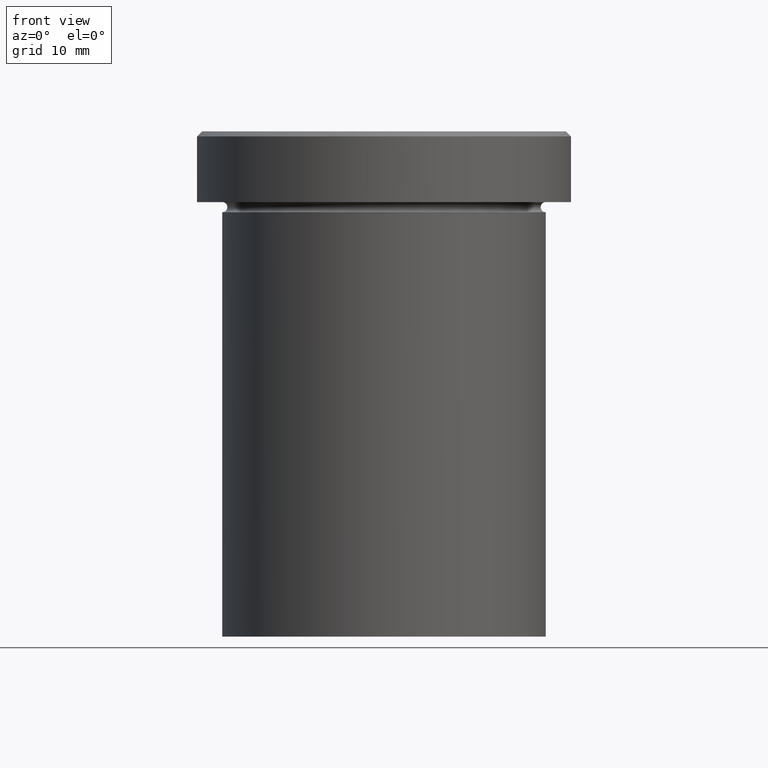
[diagram: clean part render]
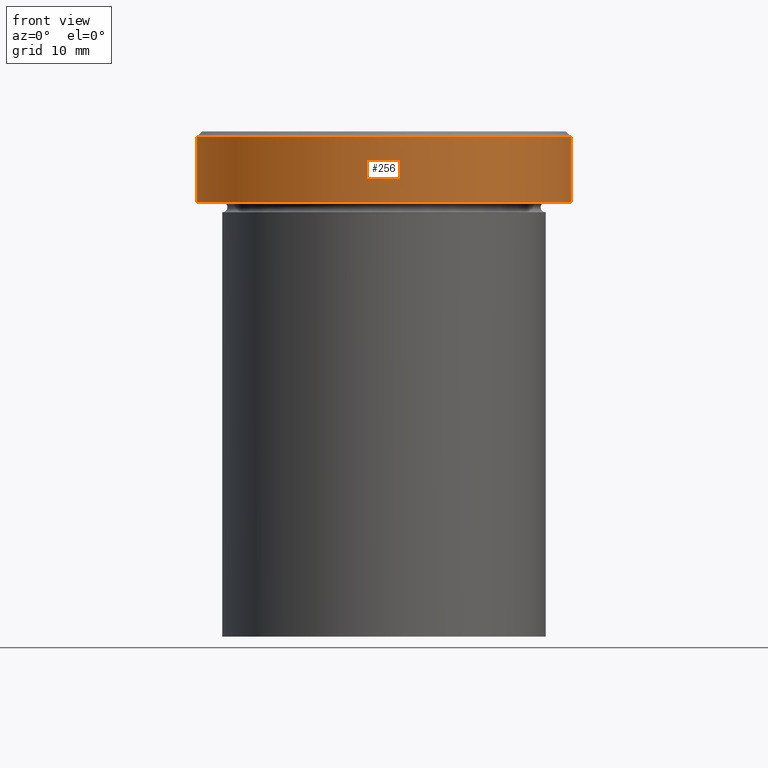
[diagram: same view with one face highlighted and labeled with its STEP entity id]
A machine part, front view. The second image highlights one B-rep face of the part: STEP entity #256.
In plain terms, the highlighted cylindrical surface (partial cylindrical patch) has radius 18.5 mm, axis along (-0, -0, 1).
Its self-contained STEP definition (entity closure, byte-faithful):
#1 = DIRECTION ( 'NONE',  ( -0.000000000000000000, -0.000000000000000000, 1.000000000000000000 ) ) ;
#5 = ORIENTED_EDGE ( 'NONE', *, *, #288, .T. ) ;
#10 = VERTEX_POINT ( 'NONE', #147 ) ;
#20 = DIRECTION ( 'NONE',  ( -0.000000000000000000, -0.000000000000000000, 1.000000000000000000 ) ) ;
#36 = EDGE_CURVE ( 'NONE', #143, #10, #93, .T. ) ;
#48 = ORIENTED_EDGE ( 'NONE', *, *, #110, .T. ) ;
#60 = VERTEX_POINT ( 'NONE', #181 ) ;
#68 = AXIS2_PLACEMENT_3D ( 'NONE', #139, #1, #294 ) ;
#72 = VECTOR ( 'NONE', #247, 1000.000000000000000 ) ;
#81 = EDGE_CURVE ( 'NONE', #356, #60, #179, .T. ) ;
#89 = ORIENTED_EDGE ( 'NONE', *, *, #36, .T. ) ;
#93 = LINE ( 'NONE', #242, #346 ) ;
#110 = EDGE_CURVE ( 'NONE', #10, #60, #334, .T. ) ;
#115 = CARTESIAN_POINT ( 'NONE',  ( 0.000000000000000000, 0.000000000000000000, -0.5000000000000004441 ) ) ;
#121 = CARTESIAN_POINT ( 'NONE',  ( 0.000000000000000000, 0.000000000000000000, -6.999999999999999112 ) ) ;
#139 = CARTESIAN_POINT ( 'NONE',  ( 0.000000000000000000, 0.000000000000000000, 0.000000000000000000 ) ) ;
#143 = VERTEX_POINT ( 'NONE', #271 ) ;
#146 = CARTESIAN_POINT ( 'NONE',  ( -18.50000000000000000, 2.265596578422603396E-15, -6.999999999999999112 ) ) ;
#147 = CARTESIAN_POINT ( 'NONE',  ( 18.50000000000000000, 0.000000000000000000, -0.5000000000000004441 ) ) ;
#167 = CYLINDRICAL_SURFACE ( 'NONE', #68, 18.50000000000000000 ) ;
#174 = DIRECTION ( 'NONE',  ( -0.000000000000000000, -0.000000000000000000, 1.000000000000000000 ) ) ;
#179 = LINE ( 'NONE', #310, #72 ) ;
#181 = CARTESIAN_POINT ( 'NONE',  ( -18.50000000000000000, 2.265596578422603396E-15, -0.5000000000000004441 ) ) ;
#204 = ORIENTED_EDGE ( 'NONE', *, *, #81, .F. ) ;
#237 = AXIS2_PLACEMENT_3D ( 'NONE', #121, #174, #269 ) ;
#242 = CARTESIAN_POINT ( 'NONE',  ( 18.50000000000000000, 0.000000000000000000, 0.000000000000000000 ) ) ;
#247 = DIRECTION ( 'NONE',  ( -0.000000000000000000, -0.000000000000000000, 1.000000000000000000 ) ) ;
#256 = ADVANCED_FACE ( 'NONE', ( #289 ), #167, .T. ) ;
#269 = DIRECTION ( 'NONE',  ( 1.000000000000000000, 0.000000000000000000, 0.000000000000000000 ) ) ;
#271 = CARTESIAN_POINT ( 'NONE',  ( 18.50000000000000000, 0.000000000000000000, -6.999999999999999112 ) ) ;
#276 = DIRECTION ( 'NONE',  ( 0.000000000000000000, 0.000000000000000000, -1.000000000000000000 ) ) ;
#288 = EDGE_CURVE ( 'NONE', #356, #143, #307, .T. ) ;
#289 = FACE_OUTER_BOUND ( 'NONE', #328, .T. ) ;
#294 = DIRECTION ( 'NONE',  ( 1.000000000000000000, 0.000000000000000000, 0.000000000000000000 ) ) ;
#307 = CIRCLE ( 'NONE', #237, 18.50000000000000000 ) ;
#310 = CARTESIAN_POINT ( 'NONE',  ( -18.50000000000000000, 2.265596578422603396E-15, 0.000000000000000000 ) ) ;
#328 = EDGE_LOOP ( 'NONE', ( #204, #5, #89, #48 ) ) ;
#334 = CIRCLE ( 'NONE', #381, 18.50000000000000000 ) ;
#346 = VECTOR ( 'NONE', #20, 1000.000000000000000 ) ;
#356 = VERTEX_POINT ( 'NONE', #146 ) ;
#367 = DIRECTION ( 'NONE',  ( 1.000000000000000000, 0.000000000000000000, 0.000000000000000000 ) ) ;
#381 = AXIS2_PLACEMENT_3D ( 'NONE', #115, #276, #367 ) ;